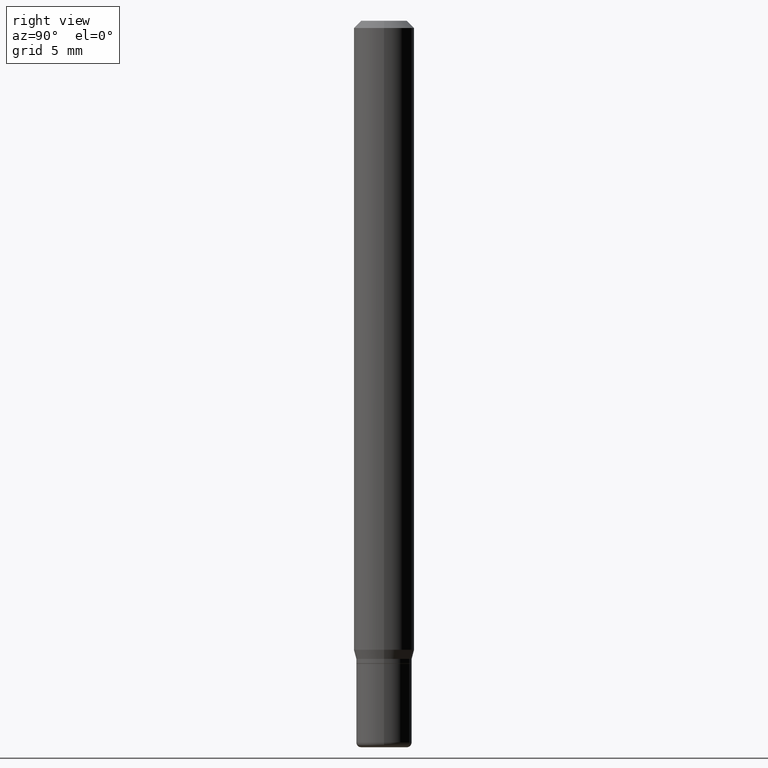
[diagram: clean part render]
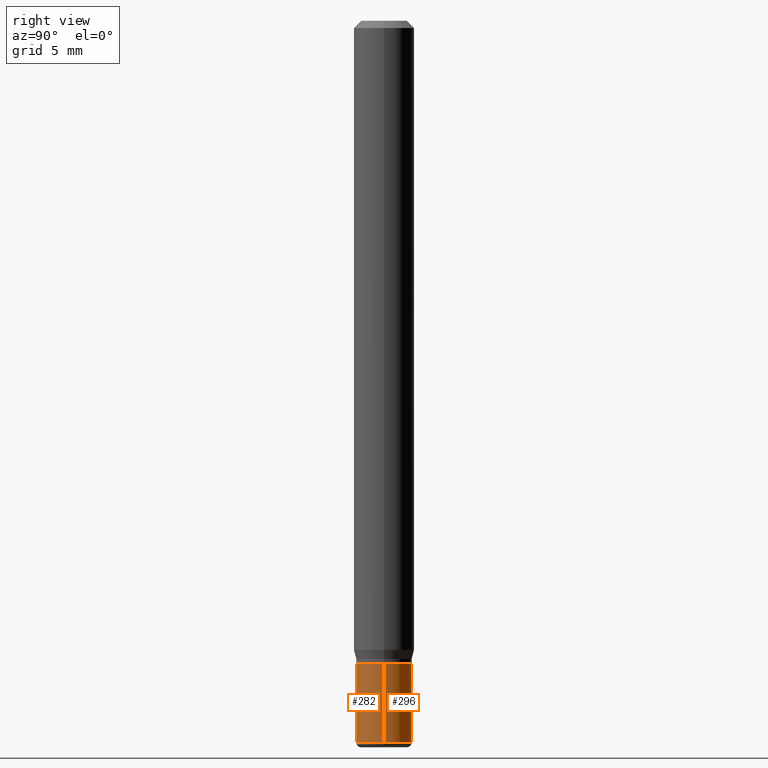
[diagram: same view with one multi-face feature highlighted, each face labeled with its STEP entity id]
A machine part, right view. The highlighted faces form ONE feature: a constant-radius fillet chain: 2 tangent blend faces with common blend radius 1.4605 mm. The faces share edges in the B-rep.
Their STEP definitions:
[1] entity #282 (Cylinder):
#3 = VERTEX_POINT ( 'NONE', #512 ) ;
#11 = EDGE_CURVE ( 'NONE', #216, #417, #267, .T. ) ;
#21 = DIRECTION ( 'NONE',  ( -2.445468806185136877E-29, 3.491481338843145188E-15, 1.000000000000000000 ) ) ;
#29 = CARTESIAN_POINT ( 'NONE',  ( 0.05749999999999997474, -4.015203539669602175E-16, 2.803801646082662240E-30 ) ) ;
#36 = CARTESIAN_POINT ( 'NONE',  ( 0.000000000000000000, 0.000000000000000000, 0.000000000000000000 ) ) ;
#59 = VECTOR ( 'NONE', #21, 39.37007874015748143 ) ;
#75 = CYLINDRICAL_SURFACE ( 'NONE', #275, 0.05749999999999997474 ) ;
#77 = AXIS2_PLACEMENT_3D ( 'NONE', #159, #396, #437 ) ;
#80 = DIRECTION ( 'NONE',  ( -2.445468806185136597E-29, 3.491481338843145583E-15, 1.000000000000000000 ) ) ;
#82 = DIRECTION ( 'NONE',  ( -2.445468806185136597E-29, 3.491481338843145583E-15, 1.000000000000000000 ) ) ;
#97 = ORIENTED_EDGE ( 'NONE', *, *, #292, .T. ) ;
#104 = CARTESIAN_POINT ( 'NONE',  ( -0.05750000000000000250, -4.510062263033223973E-15, -1.327500000000000346 ) ) ;
#119 = CIRCLE ( 'NONE', #77, 0.05749999999999994699 ) ;
#146 = DIRECTION ( 'NONE',  ( -2.445468806185136877E-29, 3.491481338843145188E-15, 1.000000000000000000 ) ) ;
#150 = LINE ( 'NONE', #504, #451 ) ;
#154 = VERTEX_POINT ( 'NONE', #244 ) ;
#159 = CARTESIAN_POINT ( 'NONE',  ( 3.643748521215853910E-29, -5.202307194876288105E-15, -1.490000000000000213 ) ) ;
#175 = ORIENTED_EDGE ( 'NONE', *, *, #11, .F. ) ;
#179 = EDGE_LOOP ( 'NONE', ( #196, #97, #466, #175 ) ) ;
#196 = ORIENTED_EDGE ( 'NONE', *, *, #253, .F. ) ;
#216 = VERTEX_POINT ( 'NONE', #104 ) ;
#244 = CARTESIAN_POINT ( 'NONE',  ( 0.05749999999999994699, -5.603827548843247337E-15, -1.490000000000000213 ) ) ;
#245 = EDGE_CURVE ( 'NONE', #154, #417, #393, .T. ) ;
#249 = AXIS2_PLACEMENT_3D ( 'NONE', #388, #82, #358 ) ;
#253 = EDGE_CURVE ( 'NONE', #3, #216, #150, .T. ) ;
#267 = CIRCLE ( 'NONE', #249, 0.05750000000000000250 ) ;
#275 = AXIS2_PLACEMENT_3D ( 'NONE', #36, #80, #317 ) ;
#282 = ADVANCED_FACE ( 'NONE', ( #430 ), #75, .T. ) ;
#292 = EDGE_CURVE ( 'NONE', #3, #154, #119, .T. ) ;
#317 = DIRECTION ( 'NONE',  ( 1.000000000000000000, -6.982962677686267499E-15, 4.876176775795936353E-29 ) ) ;
#358 = DIRECTION ( 'NONE',  ( 1.000000000000000000, -6.982962677686273810E-15, 0.000000000000000000 ) ) ;
#388 = CARTESIAN_POINT ( 'NONE',  ( 3.246359840210769662E-29, -4.634941477314276569E-15, -1.327500000000000346 ) ) ;
#393 = LINE ( 'NONE', #29, #59 ) ;
#396 = DIRECTION ( 'NONE',  ( -2.445468806185136597E-29, 3.491481338843145583E-15, 1.000000000000000000 ) ) ;
#417 = VERTEX_POINT ( 'NONE', #496 ) ;
#430 = FACE_OUTER_BOUND ( 'NONE', #179, .T. ) ;
#437 = DIRECTION ( 'NONE',  ( 1.000000000000000000, -6.982962677686263555E-15, 0.000000000000000000 ) ) ;
#451 = VECTOR ( 'NONE', #146, 39.37007874015748143 ) ;
#466 = ORIENTED_EDGE ( 'NONE', *, *, #245, .T. ) ;
#496 = CARTESIAN_POINT ( 'NONE',  ( 0.05750000000000000250, -5.036461831281237378E-15, -1.327500000000000346 ) ) ;
#504 = CARTESIAN_POINT ( 'NONE',  ( -0.05749999999999997474, 4.085620730620574274E-16, -2.828387676896569661E-30 ) ) ;
#512 = CARTESIAN_POINT ( 'NONE',  ( -0.05749999999999994699, -4.510062263033223973E-15, -1.490000000000000213 ) ) ;
[2] entity #296 (Cylinder):
#3 = VERTEX_POINT ( 'NONE', #512 ) ;
#15 = EDGE_LOOP ( 'NONE', ( #514, #148, #297, #413 ) ) ;
#16 = DIRECTION ( 'NONE',  ( -2.445468806185136597E-29, 3.491481338843145583E-15, 1.000000000000000000 ) ) ;
#21 = DIRECTION ( 'NONE',  ( -2.445468806185136877E-29, 3.491481338843145188E-15, 1.000000000000000000 ) ) ;
#29 = CARTESIAN_POINT ( 'NONE',  ( 0.05749999999999997474, -4.015203539669602175E-16, 2.803801646082662240E-30 ) ) ;
#38 = FACE_OUTER_BOUND ( 'NONE', #15, .T. ) ;
#41 = EDGE_CURVE ( 'NONE', #417, #216, #324, .T. ) ;
#59 = VECTOR ( 'NONE', #21, 39.37007874015748143 ) ;
#104 = CARTESIAN_POINT ( 'NONE',  ( -0.05750000000000000250, -4.510062263033223973E-15, -1.327500000000000346 ) ) ;
#115 = CARTESIAN_POINT ( 'NONE',  ( 3.246359840210769662E-29, -4.634941477314276569E-15, -1.327500000000000346 ) ) ;
#146 = DIRECTION ( 'NONE',  ( -2.445468806185136877E-29, 3.491481338843145188E-15, 1.000000000000000000 ) ) ;
#148 = ORIENTED_EDGE ( 'NONE', *, *, #253, .T. ) ;
#150 = LINE ( 'NONE', #504, #451 ) ;
#154 = VERTEX_POINT ( 'NONE', #244 ) ;
#161 = DIRECTION ( 'NONE',  ( -2.445468806185136597E-29, 3.491481338843145583E-15, 1.000000000000000000 ) ) ;
#181 = DIRECTION ( 'NONE',  ( 1.000000000000000000, -6.982962677686263555E-15, 0.000000000000000000 ) ) ;
#197 = CYLINDRICAL_SURFACE ( 'NONE', #227, 0.05749999999999997474 ) ;
#216 = VERTEX_POINT ( 'NONE', #104 ) ;
#217 = AXIS2_PLACEMENT_3D ( 'NONE', #262, #16, #181 ) ;
#227 = AXIS2_PLACEMENT_3D ( 'NONE', #361, #295, #293 ) ;
#244 = CARTESIAN_POINT ( 'NONE',  ( 0.05749999999999994699, -5.603827548843247337E-15, -1.490000000000000213 ) ) ;
#245 = EDGE_CURVE ( 'NONE', #154, #417, #393, .T. ) ;
#253 = EDGE_CURVE ( 'NONE', #3, #216, #150, .T. ) ;
#262 = CARTESIAN_POINT ( 'NONE',  ( 3.643748521215853910E-29, -5.202307194876288105E-15, -1.490000000000000213 ) ) ;
#293 = DIRECTION ( 'NONE',  ( 1.000000000000000000, -6.982962677686267499E-15, 4.876176775795936353E-29 ) ) ;
#295 = DIRECTION ( 'NONE',  ( -2.445468806185136597E-29, 3.491481338843145583E-15, 1.000000000000000000 ) ) ;
#296 = ADVANCED_FACE ( 'NONE', ( #38 ), #197, .T. ) ;
#297 = ORIENTED_EDGE ( 'NONE', *, *, #41, .F. ) ;
#324 = CIRCLE ( 'NONE', #432, 0.05750000000000000250 ) ;
#361 = CARTESIAN_POINT ( 'NONE',  ( 0.000000000000000000, 0.000000000000000000, 0.000000000000000000 ) ) ;
#393 = LINE ( 'NONE', #29, #59 ) ;
#413 = ORIENTED_EDGE ( 'NONE', *, *, #245, .F. ) ;
#417 = VERTEX_POINT ( 'NONE', #496 ) ;
#431 = DIRECTION ( 'NONE',  ( 1.000000000000000000, -6.982962677686273810E-15, 0.000000000000000000 ) ) ;
#432 = AXIS2_PLACEMENT_3D ( 'NONE', #115, #161, #431 ) ;
#443 = CIRCLE ( 'NONE', #217, 0.05749999999999994699 ) ;
#451 = VECTOR ( 'NONE', #146, 39.37007874015748143 ) ;
#484 = EDGE_CURVE ( 'NONE', #154, #3, #443, .T. ) ;
#496 = CARTESIAN_POINT ( 'NONE',  ( 0.05750000000000000250, -5.036461831281237378E-15, -1.327500000000000346 ) ) ;
#504 = CARTESIAN_POINT ( 'NONE',  ( -0.05749999999999997474, 4.085620730620574274E-16, -2.828387676896569661E-30 ) ) ;
#512 = CARTESIAN_POINT ( 'NONE',  ( -0.05749999999999994699, -4.510062263033223973E-15, -1.490000000000000213 ) ) ;
#514 = ORIENTED_EDGE ( 'NONE', *, *, #484, .T. ) ;